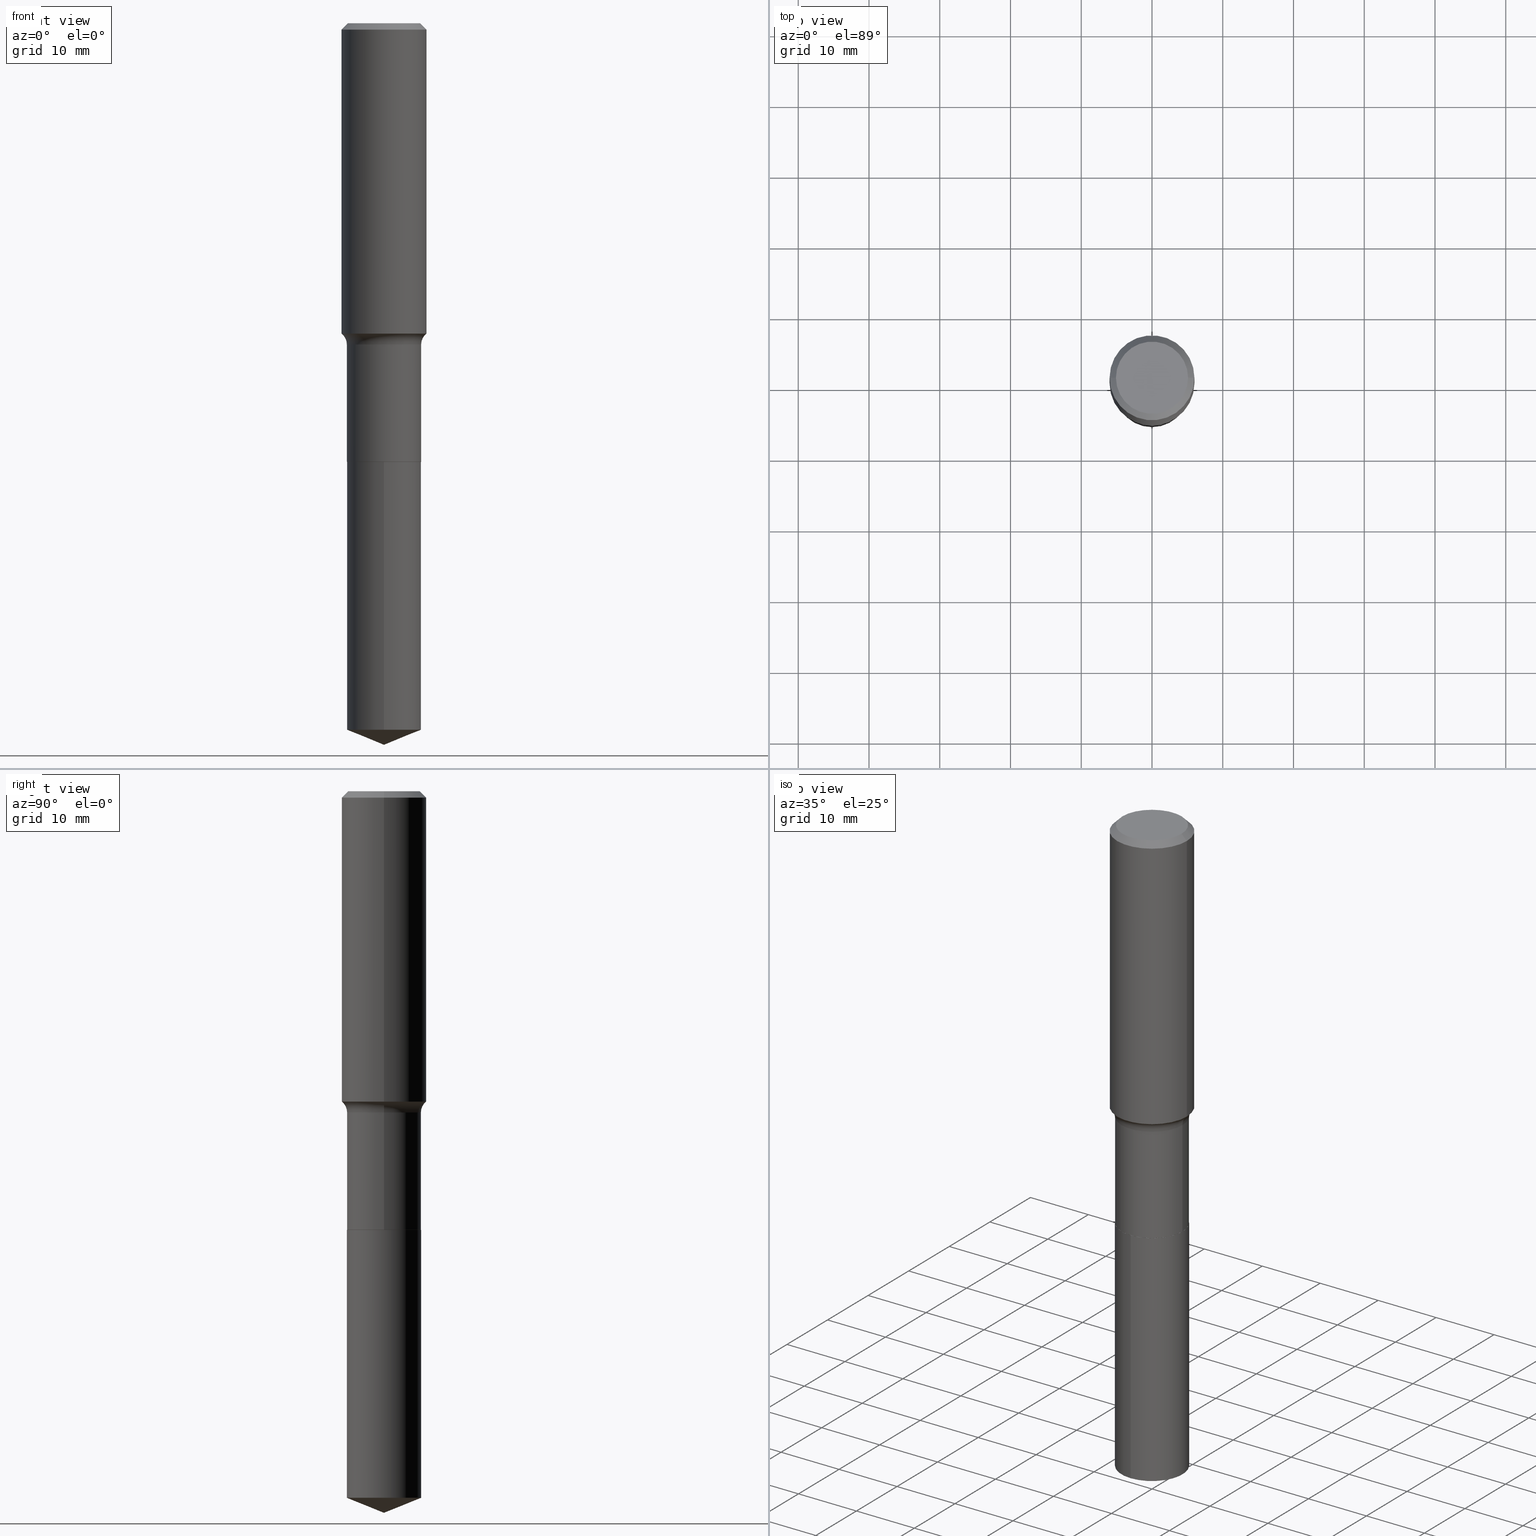
[diagram: canonical four-view strip — front | top / right | iso, engineering-drawing reading convention]
A machine part, canonical four-view strip (front | top / right | iso — engineering-drawing reading convention). The complete STEP part file that produces these views, byte-faithful:
ISO-10303-21;
HEADER;
FILE_DESCRIPTION (( 'STEP AP203' ),
    '1' );
FILE_NAME ('69195.STEP',
    '2024-04-19T17:21:42',
    ( '' ),
    ( '' ),
    'SwSTEP 2.0',
    'SolidWorks 2023',
    '' );
FILE_SCHEMA (( 'CONFIG_CONTROL_DESIGN' ));
ENDSEC;

DATA;
#1 = COORDINATED_UNIVERSAL_TIME_OFFSET ( 5, 0, .BEHIND. ) ;
#2 = CONICAL_SURFACE ( 'NONE', #419, 97.44436430772833546, 1.186823891356144633 ) ;
#3 = ORIENTED_EDGE ( 'NONE', *, *, #363, .F. ) ;
#4 = DIRECTION ( 'NONE',  ( 1.000000000000000000, -6.982962677686266711E-15, 0.000000000000000000 ) ) ;
#5 = EDGE_LOOP ( 'NONE', ( #273, #109 ) ) ;
#6 = DIRECTION ( 'NONE',  ( -2.445468806185136597E-29, 3.491481338843145583E-15, 1.000000000000000000 ) ) ;
#7 = EDGE_CURVE ( 'NONE', #198, #469, #202, .T. ) ;
#8 = LOCAL_TIME ( 13, 21, 42.00000000000000000, #1 ) ;
#9 = MECHANICAL_CONTEXT ( 'NONE', #491, 'mechanical' ) ;
#10 = DIRECTION ( 'NONE',  ( -2.445425754346182208E-29, 3.491542991526886614E-15, 1.000000000000000000 ) ) ;
#11 = ORIENTED_EDGE ( 'NONE', *, *, #100, .T. ) ;
#12 = EDGE_CURVE ( 'NONE', #435, #448, #154, .T. ) ;
#13 = DIRECTION ( 'NONE',  ( -2.445468806185136877E-29, 3.491481338843145188E-15, 1.000000000000000000 ) ) ;
#14 = ADVANCED_BREP_SHAPE_REPRESENTATION ( '69195', ( #215, #46, #451 ), #331 ) ;
#15 = AXIS2_PLACEMENT_3D ( 'NONE', #486, #190, #152 ) ;
#16 = AXIS2_PLACEMENT_3D ( 'NONE', #92, #436, #256 ) ;
#17 = ORIENTED_EDGE ( 'NONE', *, *, #325, .F. ) ;
#18 = DIRECTION ( 'NONE',  ( -2.445468806185136597E-29, 3.491481338843145583E-15, 1.000000000000000000 ) ) ;
#19 = PERSON_AND_ORGANIZATION ( #35, #400 ) ;
#20 = DIRECTION ( 'NONE',  ( 1.000000000000000000, -6.982962677686266711E-15, 0.000000000000000000 ) ) ;
#21 = EDGE_CURVE ( 'NONE', #488, #43, #321, .T. ) ;
#22 = COORDINATED_UNIVERSAL_TIME_OFFSET ( 5, 0, .BEHIND. ) ;
#23 = DIRECTION ( 'NONE',  ( -0.7071067811866199593, 7.493145998870616062E-15, 0.7071067811864750752 ) ) ;
#24 = EDGE_CURVE ( 'NONE', #361, #131, #450, .T. ) ;
#25 = VECTOR ( 'NONE', #457, 39.37007874015748143 ) ;
#26 = ORIENTED_EDGE ( 'NONE', *, *, #267, .F. ) ;
#27 = CARTESIAN_POINT ( 'NONE',  ( 0.2362000000000001043, -1.649375784469496920E-15, 1.151752954443000508E-29 ) ) ;
#28 = CARTESIAN_POINT ( 'NONE',  ( 5.967922074614207358E-29, -8.520611059312812251E-15, -2.440399999999999903 ) ) ;
#29 = DIRECTION ( 'NONE',  ( 0.7071067811866199593, -2.468850131083015945E-15, 0.7071067811864750752 ) ) ;
#30 = EDGE_CURVE ( 'NONE', #435, #137, #458, .T. ) ;
#31 = AXIS2_PLACEMENT_3D ( 'NONE', #134, #102, #142 ) ;
#32 = DIRECTION ( 'NONE',  ( -1.000000000000000000, 6.982962677686266711E-15, 0.000000000000000000 ) ) ;
#33 = VECTOR ( 'NONE', #410, 39.37007874015748143 ) ;
#34 = EDGE_CURVE ( 'NONE', #131, #464, #442, .T. ) ;
#35 = PERSON ( 'UNSPECIFIED', 'UNSPECIFIED', 'UNSPECIFIED', ('UNSPECIFIED'), ('UNSPECIFIED'), ('UNSPECIFIED') ) ;
#36 = CARTESIAN_POINT ( 'NONE',  ( -0.2361999999999999933, -1.398813793774924506E-15, -0.03543000000000021826 ) ) ;
#37 = EDGE_LOOP ( 'NONE', ( #223, #212, #327, #206 ) ) ;
#38 = LENGTH_MEASURE_WITH_UNIT ( LENGTH_MEASURE( 0.02539999999999999897 ), #303 );
#39 = DIRECTION ( 'NONE',  ( -0.7071067811865453523, 2.468850131082234184E-15, -0.7071067811865496822 ) ) ;
#40 = CC_DESIGN_APPROVAL ( #63, ( #347 ) ) ;
#41 = DATE_AND_TIME ( #456, #8 ) ;
#42 = CARTESIAN_POINT ( 'NONE',  ( 5.969144809017299038E-29, -8.522356799982232966E-15, -2.440900000000000070 ) ) ;
#43 = VERTEX_POINT ( 'NONE', #365 ) ;
#44 = EDGE_CURVE ( 'NONE', #448, #414, #481, .T. ) ;
#45 = VECTOR ( 'NONE', #13, 39.37007874015748143 ) ;
#46 = MANIFOLD_SOLID_BREP ( 'Body-Move/Copy2[2]', #472 ) ;
#47 = EDGE_LOOP ( 'NONE', ( #373, #241, #218, #408 ) ) ;
#48 = ORIENTED_EDGE ( 'NONE', *, *, #462, .F. ) ;
#49 = CARTESIAN_POINT ( 'NONE',  ( 9.820308215142285184E-29, -1.402068821500303058E-14, -4.015699999999999825 ) ) ;
#50 = EDGE_CURVE ( 'NONE', #227, #414, #98, .T. ) ;
#51 = FACE_OUTER_BOUND ( 'NONE', #417, .T. ) ;
#52 = AXIS2_PLACEMENT_3D ( 'NONE', #159, #431, #250 ) ;
#53 = CONICAL_SURFACE ( 'NONE', #136, 0.2062000000000000222, 0.7853981633975507526 ) ;
#54 = ORIENTED_EDGE ( 'NONE', *, *, #106, .F. ) ;
#55 = PLANE ( 'NONE',  #16 ) ;
#56 = DIRECTION ( 'NONE',  ( -6.982962677686265133E-15, -1.000000000000000000, 3.964946289788480107E-15 ) ) ;
#57 = EDGE_CURVE ( 'NONE', #227, #361, #406, .T. ) ;
#58 = DIRECTION ( 'NONE',  ( -1.000000000000000000, 7.105427357601001859E-15, 0.000000000000000000 ) ) ;
#59 = AXIS2_PLACEMENT_3D ( 'NONE', #199, #397, #56 ) ;
#60 = CARTESIAN_POINT ( 'NONE',  ( 0.000000000000000000, 0.000000000000000000, 0.000000000000000000 ) ) ;
#61 = VERTEX_POINT ( 'NONE', #305 ) ;
#62 = FACE_OUTER_BOUND ( 'NONE', #173, .T. ) ;
#63 = APPROVAL ( #200, 'UNSPECIFIED' ) ;
#64 = FACE_OUTER_BOUND ( 'NONE', #270, .T. ) ;
#65 = CONICAL_SURFACE ( 'NONE', #390, 0.2062000000000000222, 0.7853981633975507526 ) ;
#66 = DIRECTION ( 'NONE',  ( -2.445425754346182208E-29, 3.491542991526886220E-15, 1.000000000000000000 ) ) ;
#67 = ORIENTED_EDGE ( 'NONE', *, *, #50, .F. ) ;
#68 = PRODUCT_DEFINITION_FORMATION_WITH_SPECIFIED_SOURCE ( 'ANY', '', #209, .NOT_KNOWN. ) ;
#69 = EDGE_CURVE ( 'NONE', #61, #187, #73, .T. ) ;
#70 = DIRECTION ( 'NONE',  ( -2.445468806185136597E-29, 3.491481338843145583E-15, 1.000000000000000000 ) ) ;
#71 = CARTESIAN_POINT ( 'NONE',  ( 4.373231866100880373E-29, -6.243816078253197366E-15, -1.788300000000000223 ) ) ;
#72 = PERSON_AND_ORGANIZATION ( #35, #400 ) ;
#73 = LINE ( 'NONE', #233, #25 ) ;
#74 = ORIENTED_EDGE ( 'NONE', *, *, #30, .T. ) ;
#75 = AXIS2_PLACEMENT_3D ( 'NONE', #126, #404, #351 ) ;
#76 = TOROIDAL_SURFACE ( 'NONE', #260, 0.2846999999999998976, 0.07799999999999993050 ) ;
#77 =( NAMED_UNIT ( * ) PLANE_ANGLE_UNIT ( ) SI_UNIT ( $, .RADIAN. ) );
#78 = DIRECTION ( 'NONE',  ( 0.7071067811865453523, -7.319954787623248157E-15, -0.7071067811865496822 ) ) ;
#79 = PERSON_AND_ORGANIZATION ( #35, #400 ) ;
#80 = EDGE_CURVE ( 'NONE', #488, #464, #388, .T. ) ;
#81 = APPLICATION_CONTEXT ( 'configuration controlled 3d designs of mechanical parts and assemblies' ) ;
#82 = CARTESIAN_POINT ( 'NONE',  ( -0.2062000000000000222, -7.057217678844906817E-15, -2.440900000000000070 ) ) ;
#83 = ORIENTED_EDGE ( 'NONE', *, *, #208, .F. ) ;
#84 = LINE ( 'NONE', #82, #231 ) ;
#85 = EDGE_LOOP ( 'NONE', ( #254, #444 ) ) ;
#86 = CARTESIAN_POINT ( 'NONE',  ( -8.645640321485652588E-28, 1.234414837980197635E-13, 35.35437874015748605 ) ) ;
#87 = AXIS2_PLACEMENT_3D ( 'NONE', #306, #377, #487 ) ;
#88 = APPROVAL ( #188, 'UNSPECIFIED' ) ;
#89 = ORIENTED_EDGE ( 'NONE', *, *, #24, .T. ) ;
#90 = DIRECTION ( 'NONE',  ( 6.588037525764790502E-15, 0.9271838545667887566, 0.3746065934159082955 ) ) ;
#91 = ORIENTED_EDGE ( 'NONE', *, *, #106, .T. ) ;
#92 = CARTESIAN_POINT ( 'NONE',  ( -5.008488096090115757E-47, 7.150793614331959538E-33, 2.048068690724057264E-18 ) ) ;
#93 = ORIENTED_EDGE ( 'NONE', *, *, #393, .T. ) ;
#94 = DIRECTION ( 'NONE',  ( -2.445468806185136597E-29, 3.491481338843145583E-15, 1.000000000000000000 ) ) ;
#95 = ADVANCED_FACE ( 'NONE', ( #274 ), #156, .F. ) ;
#96 = CYLINDRICAL_SURFACE ( 'NONE', #147, 0.2362000000000001043 ) ;
#97 = DIRECTION ( 'NONE',  ( -2.445468806185136597E-29, 3.491481338843145583E-15, 1.000000000000000000 ) ) ;
#98 = LINE ( 'NONE', #452, #483 ) ;
#99 = ORIENTED_EDGE ( 'NONE', *, *, #44, .F. ) ;
#100 = EDGE_CURVE ( 'NONE', #43, #131, #191, .T. ) ;
#101 = ORIENTED_EDGE ( 'NONE', *, *, #197, .F. ) ;
#102 = DIRECTION ( 'NONE',  ( -2.445425754346182208E-29, 3.491542991526886614E-15, 1.000000000000000000 ) ) ;
#103 = CARTESIAN_POINT ( 'NONE',  ( -0.2361999999999999933, 1.525672600634282748E-15, -0.03543000000000021826 ) ) ;
#104 = CONICAL_SURFACE ( 'NONE', #399, 97.44436430772833546, 1.186823891356144633 ) ;
#105 = CARTESIAN_POINT ( 'NONE',  ( 0.2062000000000000222, -9.962243704121142752E-15, -2.440900000000000070 ) ) ;
#106 = EDGE_CURVE ( 'NONE', #61, #312, #284, .T. ) ;
#107 = PERSON_AND_ORGANIZATION ( #35, #400 ) ;
#108 = DIRECTION ( 'NONE',  ( -2.445468806185136877E-29, 3.491481338843145188E-15, 1.000000000000000000 ) ) ;
#109 = ORIENTED_EDGE ( 'NONE', *, *, #477, .F. ) ;
#110 = COORDINATED_UNIVERSAL_TIME_OFFSET ( 5, 0, .BEHIND. ) ;
#111 = ORIENTED_EDGE ( 'NONE', *, *, #439, .T. ) ;
#112 = AXIS2_PLACEMENT_3D ( 'NONE', #165, #316, #58 ) ;
#113 = ADVANCED_FACE ( 'NONE', ( #438 ), #395, .T. ) ;
#114 = DIRECTION ( 'NONE',  ( 1.000000000000000000, -6.982962677686268288E-15, 0.000000000000000000 ) ) ;
#115 =( NAMED_UNIT ( * ) SI_UNIT ( $, .STERADIAN. ) SOLID_ANGLE_UNIT ( ) );
#116 = DIRECTION ( 'NONE',  ( -6.982962677686265133E-15, -1.000000000000000000, 3.498761904101830713E-15 ) ) ;
#117 = VECTOR ( 'NONE', #139, 39.37007874015748143 ) ;
#118 = CIRCLE ( 'NONE', #288, 0.2067000000000000226 ) ;
#119 = CARTESIAN_POINT ( 'NONE',  ( 0.2066999999999999393, -7.687194463730947793E-15, -1.788300000000000223 ) ) ;
#120 = DIRECTION ( 'NONE',  ( 1.000000000000000000, -6.982962677686266711E-15, 4.876140833081945105E-29 ) ) ;
#121 = VERTEX_POINT ( 'NONE', #465 ) ;
#122 = DIRECTION ( 'NONE',  ( -2.445468806185136597E-29, 3.491481338843145583E-15, 1.000000000000000000 ) ) ;
#123 = PRODUCT_DEFINITION ( 'UNKNOWN', '', #68, #133 ) ;
#124 = PRODUCT_DEFINITION_SHAPE ( 'NONE', 'NONE',  #123 ) ;
#125 = ORIENTED_EDGE ( 'NONE', *, *, #100, .F. ) ;
#126 = CARTESIAN_POINT ( 'NONE',  ( 8.664295980313993487E-31, -1.237031838352134079E-16, -0.03543000000000021826 ) ) ;
#127 = UNCERTAINTY_MEASURE_WITH_UNIT (LENGTH_MEASURE( 1.000000000000000082E-05 ), #276, 'distance_accuracy_value', 'NONE');
#128 = AXIS2_PLACEMENT_3D ( 'NONE', #60, #217, #292 ) ;
#129 = APPROVAL_DATE_TIME ( #280, #63 ) ;
#130 = CARTESIAN_POINT ( 'NONE',  ( 0.000000000000000000, 0.000000000000000000, 0.000000000000000000 ) ) ;
#131 = VERTEX_POINT ( 'NONE', #119 ) ;
#132 = LINE ( 'NONE', #265, #356 ) ;
#133 = DESIGN_CONTEXT ( 'detailed design', #81, 'design' ) ;
#134 = CARTESIAN_POINT ( 'NONE',  ( 9.615978351218758648E-29, -1.372925219351792283E-14, -3.932187779119873383 ) ) ;
#135 = CC_DESIGN_DATE_AND_TIME_ASSIGNMENT ( #350, #426, ( #347 ) ) ;
#136 = AXIS2_PLACEMENT_3D ( 'NONE', #299, #412, #176 ) ;
#137 = VERTEX_POINT ( 'NONE', #428 ) ;
#138 = FACE_OUTER_BOUND ( 'NONE', #437, .T. ) ;
#139 = DIRECTION ( 'NONE',  ( -2.445468806185136877E-29, 3.491481338843145188E-15, 1.000000000000000000 ) ) ;
#140 = ADVANCED_FACE ( 'NONE', ( #51 ), #403, .T. ) ;
#141 = ORIENTED_EDGE ( 'NONE', *, *, #12, .F. ) ;
#142 = DIRECTION ( 'NONE',  ( -6.982962677686265133E-15, -1.000000000000000000, 2.643297526525653668E-15 ) ) ;
#143 = EDGE_CURVE ( 'NONE', #361, #227, #413, .T. ) ;
#144 = DIRECTION ( 'NONE',  ( -2.445425754346182208E-29, 3.491542991526886614E-15, 1.000000000000000000 ) ) ;
#145 = VECTOR ( 'NONE', #29, 39.37007874015748143 ) ;
#146 = PERSON_AND_ORGANIZATION ( #35, #400 ) ;
#147 = AXIS2_PLACEMENT_3D ( 'NONE', #407, #94, #324 ) ;
#148 = APPLICATION_PROTOCOL_DEFINITION ( 'international standard', 'config_control_design', 1994, #81 ) ;
#149 = EDGE_CURVE ( 'NONE', #226, #488, #84, .T. ) ;
#150 = EDGE_LOOP ( 'NONE', ( #101, #213, #89, #326 ) ) ;
#151 = CARTESIAN_POINT ( 'NONE',  ( -0.2067000000000000226, -5.913521733966878155E-15, -2.440399999999999903 ) ) ;
#152 = DIRECTION ( 'NONE',  ( 1.000000000000000000, -6.982962677686265922E-15, 4.876176775795935793E-29 ) ) ;
#153 = DIRECTION ( 'NONE',  ( 1.000000000000000000, -6.982962677686268288E-15, 0.000000000000000000 ) ) ;
#154 = CIRCLE ( 'NONE', #263, 0.2007700000000000040 ) ;
#155 = APPROVAL_PERSON_ORGANIZATION ( #463, #329, #341 ) ;
#156 = PLANE ( 'NONE',  #15 ) ;
#157 = CC_DESIGN_PERSON_AND_ORGANIZATION_ASSIGNMENT ( #285, #433, ( #68 ) ) ;
#158 = DIRECTION ( 'NONE',  ( 1.000000000000000000, -6.982962677686266711E-15, 4.876140833081945105E-29 ) ) ;
#159 = CARTESIAN_POINT ( 'NONE',  ( 4.373231866100880373E-29, -6.243816078253197366E-15, -1.788300000000000223 ) ) ;
#160 = CYLINDRICAL_SURFACE ( 'NONE', #195, 0.2066999999999999671 ) ;
#161 = VECTOR ( 'NONE', #78, 39.37007874015748143 ) ;
#162 = AXIS2_PLACEMENT_3D ( 'NONE', #389, #6, #153 ) ;
#163 = APPROVAL_ROLE ( '' ) ;
#164 = ORIENTED_EDGE ( 'NONE', *, *, #149, .T. ) ;
#165 = CARTESIAN_POINT ( 'NONE',  ( -0.2846999999999998976, -4.220900909544193259E-15, -1.788300000000000223 ) ) ;
#166 = DATE_AND_TIME ( #272, #443 ) ;
#167 = ORIENTED_EDGE ( 'NONE', *, *, #446, .T. ) ;
#168 = EDGE_LOOP ( 'NONE', ( #372, #171, #470, #125 ) ) ;
#169 = DIRECTION ( 'NONE',  ( 2.445425754346182208E-29, -3.491542991526886220E-15, -1.000000000000000000 ) ) ;
#170 = SECURITY_CLASSIFICATION_LEVEL ( 'unclassified' ) ;
#171 = ORIENTED_EDGE ( 'NONE', *, *, #80, .T. ) ;
#172 = DIRECTION ( 'NONE',  ( 6.982962677686265922E-15, 1.000000000000000000, -3.491542991526886220E-15 ) ) ;
#173 = EDGE_LOOP ( 'NONE', ( #315, #91, #17 ) ) ;
#174 = FACE_OUTER_BOUND ( 'NONE', #150, .T. ) ;
#175 = CARTESIAN_POINT ( 'NONE',  ( -8.645640321485652588E-28, 1.234414837980197635E-13, 35.35437874015748605 ) ) ;
#176 = DIRECTION ( 'NONE',  ( 1.000000000000000000, -6.982962677686268288E-15, 0.000000000000000000 ) ) ;
#177 = ADVANCED_FACE ( 'NONE', ( #320 ), #104, .T. ) ;
#178 = TOROIDAL_SURFACE ( 'NONE', #259, 0.2846999999999998976, 0.07799999999999993050 ) ;
#179 = APPROVAL_PERSON_ORGANIZATION ( #146, #88, #301 ) ;
#180 = CARTESIAN_POINT ( 'NONE',  ( 0.2007700000000000040, -1.560767496960719672E-15, 4.096137381458473721E-18 ) ) ;
#181 = ADVANCED_FACE ( 'NONE', ( #318 ), #242, .F. ) ;
#182 = FACE_OUTER_BOUND ( 'NONE', #467, .T. ) ;
#183 = DIRECTION ( 'NONE',  ( 1.000000000000000000, -6.982962677686264344E-15, 0.000000000000000000 ) ) ;
#184 = CIRCLE ( 'NONE', #466, 0.2007700000000000040 ) ;
#185 = CARTESIAN_POINT ( 'NONE',  ( -0.2007700000000000040, 1.463821008716677338E-15, 4.096137381438094301E-18 ) ) ;
#186 = AXIS2_PLACEMENT_3D ( 'NONE', #445, #492, #484 ) ;
#187 = VERTEX_POINT ( 'NONE', #279 ) ;
#188 = APPROVAL_STATUS ( 'not_yet_approved' ) ;
#189 = EDGE_CURVE ( 'NONE', #448, #435, #184, .T. ) ;
#190 = DIRECTION ( 'NONE',  ( -2.438088387897960049E-29, 3.491481338843145188E-15, 1.000000000000000000 ) ) ;
#191 = LINE ( 'NONE', #479, #45 ) ;
#192 = DIRECTION ( 'NONE',  ( -2.445468806185136597E-29, 3.491481338843145583E-15, 1.000000000000000000 ) ) ;
#193 = ADVANCED_FACE ( 'NONE', ( #358 ), #160, .T. ) ;
#194 = APPLICATION_PROTOCOL_DEFINITION ( 'international standard', 'config_control_design', 1994, #491 ) ;
#195 = AXIS2_PLACEMENT_3D ( 'NONE', #130, #18, #313 ) ;
#196 = LOCAL_TIME ( 13, 21, 42.00000000000000000, #319 ) ;
#197 = EDGE_CURVE ( 'NONE', #227, #464, #251, .T. ) ;
#198 = VERTEX_POINT ( 'NONE', #427 ) ;
#199 = CARTESIAN_POINT ( 'NONE',  ( 5.969144809017299038E-29, -8.522356799982232966E-15, -2.440900000000000070 ) ) ;
#200 = APPROVAL_STATUS ( 'not_yet_approved' ) ;
#201 = ADVANCED_FACE ( 'NONE', ( #468 ), #178, .F. ) ;
#202 = CIRCLE ( 'NONE', #375, 0.2067000000000000226 ) ;
#203 = CARTESIAN_POINT ( 'NONE',  ( -1.001697619218023151E-46, 1.430158722866391908E-32, 4.096137381448114529E-18 ) ) ;
#204 = CIRCLE ( 'NONE', #300, 0.2067000000000000226 ) ;
#205 = CONICAL_SURFACE ( 'NONE', #224, 0.2361999999999999933, 0.7853981633974452814 ) ;
#206 = ORIENTED_EDGE ( 'NONE', *, *, #393, .F. ) ;
#207 = FACE_OUTER_BOUND ( 'NONE', #47, .T. ) ;
#208 = EDGE_CURVE ( 'NONE', #414, #137, #222, .T. ) ;
#209 = PRODUCT ( '69195', '69195', '', ( #9 ) ) ;
#210 = CARTESIAN_POINT ( 'NONE',  ( -0.2066999999999999671, 1.468691834816126850E-15, -1.016743883155689005E-29 ) ) ;
#211 = PERSON_AND_ORGANIZATION_ROLE ( 'design_supplier' ) ;
#212 = ORIENTED_EDGE ( 'NONE', *, *, #295, .T. ) ;
#213 = ORIENTED_EDGE ( 'NONE', *, *, #143, .F. ) ;
#214 = CARTESIAN_POINT ( 'NONE',  ( 4.223842942448906576E-29, -6.030528287445351375E-15, -1.727211948795202234 ) ) ;
#215 = MANIFOLD_SOLID_BREP ( 'Body-Move/Copy2[1]', #424 ) ;
#216 = DIRECTION ( 'NONE',  ( 1.000000000000000000, -6.982962677686269866E-15, 4.883557194083113462E-29 ) ) ;
#217 = DIRECTION ( 'NONE',  ( -2.445468806185136597E-29, 3.491481338843145583E-15, 1.000000000000000000 ) ) ;
#218 = ORIENTED_EDGE ( 'NONE', *, *, #44, .T. ) ;
#219 = FACE_OUTER_BOUND ( 'NONE', #353, .T. ) ;
#220 = ORIENTED_EDGE ( 'NONE', *, *, #477, .T. ) ;
#221 = DIRECTION ( 'NONE',  ( 1.000000000000000000, -6.982962677686269866E-15, 0.000000000000000000 ) ) ;
#222 = CIRCLE ( 'NONE', #459, 0.2361999999999999933 ) ;
#223 = ORIENTED_EDGE ( 'NONE', *, *, #385, .F. ) ;
#224 = AXIS2_PLACEMENT_3D ( 'NONE', #323, #374, #32 ) ;
#225 = DIRECTION ( 'NONE',  ( -2.445425754346182208E-29, 3.491542991526886220E-15, 1.000000000000000000 ) ) ;
#226 = VERTEX_POINT ( 'NONE', #286 ) ;
#227 = VERTEX_POINT ( 'NONE', #249 ) ;
#228 = DATE_AND_TIME ( #269, #252 ) ;
#229 = ORIENTED_EDGE ( 'NONE', *, *, #69, .T. ) ;
#230 = ADVANCED_FACE ( 'NONE', ( #401 ), #55, .F. ) ;
#231 = VECTOR ( 'NONE', #23, 39.37007874015748143 ) ;
#232 = PERSON_AND_ORGANIZATION_ROLE ( 'creator' ) ;
#233 = CARTESIAN_POINT ( 'NONE',  ( 9.820096201727964997E-29, -1.402098919107452008E-14, -4.015699999999999825 ) ) ;
#234 = AXIS2_PLACEMENT_3D ( 'NONE', #344, #340, #386 ) ;
#235 = ORIENTED_EDGE ( 'NONE', *, *, #446, .F. ) ;
#236 = DIRECTION ( 'NONE',  ( 0.000000000000000000, 0.000000000000000000, 1.000000000000000000 ) ) ;
#237 = ADVANCED_FACE ( 'NONE', ( #207 ), #294, .T. ) ;
#238 = VECTOR ( 'NONE', #39, 39.37007874015748143 ) ;
#239 = SHAPE_DEFINITION_REPRESENTATION ( #124, #14 ) ;
#240 = DIRECTION ( 'NONE',  ( -2.445468806185136597E-29, 3.491481338843145583E-15, 1.000000000000000000 ) ) ;
#241 = ORIENTED_EDGE ( 'NONE', *, *, #189, .F. ) ;
#242 = PLANE ( 'NONE',  #434 ) ;
#243 = ADVANCED_FACE ( 'NONE', ( #138 ), #449, .T. ) ;
#244 = PERSON_AND_ORGANIZATION_ROLE ( 'classification_officer' ) ;
#245 = CARTESIAN_POINT ( 'NONE',  ( 0.000000000000000000, 0.000000000000000000, 0.000000000000000000 ) ) ;
#246 = CC_DESIGN_PERSON_AND_ORGANIZATION_ASSIGNMENT ( #398, #244, ( #347 ) ) ;
#247 = CARTESIAN_POINT ( 'NONE',  ( 5.967922074614207358E-29, -8.520611059312812251E-15, -2.440399999999999903 ) ) ;
#248 = EDGE_LOOP ( 'NONE', ( #54, #229, #283 ) ) ;
#249 = CARTESIAN_POINT ( 'NONE',  ( -0.2362000000000002153, -4.352226345579992615E-15, -1.727211948795202234 ) ) ;
#250 = DIRECTION ( 'NONE',  ( 1.000000000000000000, -6.982962677686264344E-15, 0.000000000000000000 ) ) ;
#251 = CIRCLE ( 'NONE', #112, 0.07799999999999988887 ) ;
#252 = LOCAL_TIME ( 13, 21, 42.00000000000000000, #277 ) ;
#253 = ORIENTED_EDGE ( 'NONE', *, *, #462, .T. ) ;
#254 = ORIENTED_EDGE ( 'NONE', *, *, #189, .T. ) ;
#255 = DIRECTION ( 'NONE',  ( -2.445468806185136597E-29, 3.491481338843145583E-15, 1.000000000000000000 ) ) ;
#256 = DIRECTION ( 'NONE',  ( -1.000000000000000000, 6.982962677686265922E-15, -4.876176775795935793E-29 ) ) ;
#257 = CC_DESIGN_DATE_AND_TIME_ASSIGNMENT ( #41, #416, ( #123 ) ) ;
#258 = DIRECTION ( 'NONE',  ( -2.445468806185136597E-29, 3.491481338843145583E-15, 1.000000000000000000 ) ) ;
#259 = AXIS2_PLACEMENT_3D ( 'NONE', #290, #122, #311 ) ;
#260 = AXIS2_PLACEMENT_3D ( 'NONE', #370, #258, #216 ) ;
#261 = DIRECTION ( 'NONE',  ( -6.982962677686265133E-15, -1.000000000000000000, 3.964946289788480107E-15 ) ) ;
#262 = DIRECTION ( 'NONE',  ( 1.000000000000000000, -6.982962677686268288E-15, 0.000000000000000000 ) ) ;
#263 = AXIS2_PLACEMENT_3D ( 'NONE', #335, #240, #120 ) ;
#264 = APPROVAL_PERSON_ORGANIZATION ( #19, #63, #163 ) ;
#265 = CARTESIAN_POINT ( 'NONE',  ( -1.443378385477691656E-15, -0.2067000000000085436, -2.440899999999999181 ) ) ;
#266 = ORIENTED_EDGE ( 'NONE', *, *, #267, .T. ) ;
#267 = EDGE_CURVE ( 'NONE', #121, #43, #489, .T. ) ;
#268 = CARTESIAN_POINT ( 'NONE',  ( 5.969144809017299038E-29, -8.522356799982232966E-15, -2.440900000000000070 ) ) ;
#269 = CALENDAR_DATE ( 2024, 19, 4 ) ;
#270 = EDGE_LOOP ( 'NONE', ( #141, #74, #253, #99 ) ) ;
#271 = CIRCLE ( 'NONE', #322, 0.2062000000000000222 ) ;
#272 = CALENDAR_DATE ( 2024, 19, 4 ) ;
#273 = ORIENTED_EDGE ( 'NONE', *, *, #439, .F. ) ;
#274 = FACE_OUTER_BOUND ( 'NONE', #5, .T. ) ;
#275 = ADVANCED_FACE ( 'NONE', ( #62 ), #2, .T. ) ;
#276 =( CONVERSION_BASED_UNIT ( 'INCH', #38 ) LENGTH_UNIT ( ) NAMED_UNIT ( #396 ) );
#277 = COORDINATED_UNIVERSAL_TIME_OFFSET ( 5, 0, .BEHIND. ) ;
#278 = CALENDAR_DATE ( 2024, 19, 4 ) ;
#279 = CARTESIAN_POINT ( 'NONE',  ( -1.443378385477655369E-15, -0.2067000000000137339, -3.932187779119872495 ) ) ;
#280 = DATE_AND_TIME ( #352, #308 ) ;
#281 = EDGE_LOOP ( 'NONE', ( #421, #317, #11, #235 ) ) ;
#282 = DIRECTION ( 'NONE',  ( 1.000000000000000000, -6.982962677686266711E-15, 0.000000000000000000 ) ) ;
#283 = ORIENTED_EDGE ( 'NONE', *, *, #295, .F. ) ;
#284 = LINE ( 'NONE', #49, #368 ) ;
#285 = PERSON_AND_ORGANIZATION ( #35, #400 ) ;
#286 = CARTESIAN_POINT ( 'NONE',  ( -0.2062000000000000222, -7.054568451670796404E-15, -2.440900000000000070 ) ) ;
#287 = AXIS2_PLACEMENT_3D ( 'NONE', #378, #447, #261 ) ;
#288 = AXIS2_PLACEMENT_3D ( 'NONE', #28, #97, #221 ) ;
#289 = ORIENTED_EDGE ( 'NONE', *, *, #7, .T. ) ;
#290 = CARTESIAN_POINT ( 'NONE',  ( 4.373231866100880373E-29, -6.243816078253197366E-15, -1.788300000000000223 ) ) ;
#291 = EDGE_LOOP ( 'NONE', ( #474, #357, #48, #453 ) ) ;
#292 = DIRECTION ( 'NONE',  ( 1.000000000000000000, -6.982962677686266711E-15, 4.876176775795935793E-29 ) ) ;
#293 = CARTESIAN_POINT ( 'NONE',  ( 9.615978351218758648E-29, -1.372925219351792283E-14, -3.932187779119873383 ) ) ;
#294 = CONICAL_SURFACE ( 'NONE', #75, 0.2361999999999999933, 0.7853981633974452814 ) ;
#295 = EDGE_CURVE ( 'NONE', #312, #187, #355, .T. ) ;
#296 = CC_DESIGN_SECURITY_CLASSIFICATION ( #347, ( #68 ) ) ;
#297 = CYLINDRICAL_SURFACE ( 'NONE', #287, 0.2067000000000000226 ) ;
#298 = FACE_OUTER_BOUND ( 'NONE', #37, .T. ) ;
#299 = CARTESIAN_POINT ( 'NONE',  ( 5.969144809017299038E-29, -8.522356799982232966E-15, -2.440900000000000070 ) ) ;
#300 = AXIS2_PLACEMENT_3D ( 'NONE', #293, #441, #480 ) ;
#301 = APPROVAL_ROLE ( '' ) ;
#302 = EDGE_LOOP ( 'NONE', ( #289, #93 ) ) ;
#303 =( LENGTH_UNIT ( ) NAMED_UNIT ( * ) SI_UNIT ( $, .METRE. ) );
#304 = APPROVAL_STATUS ( 'not_yet_approved' ) ;
#305 = CARTESIAN_POINT ( 'NONE',  ( 9.820096201727962755E-29, -1.402098919107451851E-14, -4.015699999999999825 ) ) ;
#306 = CARTESIAN_POINT ( 'NONE',  ( 0.2846999999999998976, -8.231865552590477417E-15, -1.788300000000000223 ) ) ;
#307 = AXIS2_PLACEMENT_3D ( 'NONE', #382, #482, #4 ) ;
#308 = LOCAL_TIME ( 13, 21, 42.00000000000000000, #22 ) ;
#309 = PERSON_AND_ORGANIZATION_ROLE ( 'design_owner' ) ;
#310 = ORIENTED_EDGE ( 'NONE', *, *, #325, .T. ) ;
#311 = DIRECTION ( 'NONE',  ( 1.000000000000000000, -6.982962677686269866E-15, 4.883557194083113462E-29 ) ) ;
#312 = VERTEX_POINT ( 'NONE', #440 ) ;
#313 = DIRECTION ( 'NONE',  ( 1.000000000000000000, -6.982962677686266711E-15, 4.876176775795935793E-29 ) ) ;
#314 = CIRCLE ( 'NONE', #339, 0.2066999999999999393 ) ;
#315 = ORIENTED_EDGE ( 'NONE', *, *, #69, .F. ) ;
#316 = DIRECTION ( 'NONE',  ( 7.105427357601001859E-15, 1.000000000000000000, -3.491481338843145583E-15 ) ) ;
#317 = ORIENTED_EDGE ( 'NONE', *, *, #21, .T. ) ;
#318 = FACE_OUTER_BOUND ( 'NONE', #302, .T. ) ;
#319 = COORDINATED_UNIVERSAL_TIME_OFFSET ( 5, 0, .BEHIND. ) ;
#320 = FACE_OUTER_BOUND ( 'NONE', #248, .T. ) ;
#321 = CIRCLE ( 'NONE', #383, 0.2067000000000000226 ) ;
#322 = AXIS2_PLACEMENT_3D ( 'NONE', #268, #192, #114 ) ;
#323 = CARTESIAN_POINT ( 'NONE',  ( 8.664295980313993487E-31, -1.237031838352134079E-16, -0.03543000000000021826 ) ) ;
#324 = DIRECTION ( 'NONE',  ( 1.000000000000000000, -6.982962677686266711E-15, 4.876176775795935793E-29 ) ) ;
#325 = EDGE_CURVE ( 'NONE', #187, #312, #204, .T. ) ;
#326 = ORIENTED_EDGE ( 'NONE', *, *, #34, .T. ) ;
#327 = ORIENTED_EDGE ( 'NONE', *, *, #363, .T. ) ;
#328 = FACE_OUTER_BOUND ( 'NONE', #291, .T. ) ;
#329 = APPROVAL ( #304, 'UNSPECIFIED' ) ;
#330 = AXIS2_PLACEMENT_3D ( 'NONE', #245, #255, #362 ) ;
#331 =( GEOMETRIC_REPRESENTATION_CONTEXT ( 3 ) GLOBAL_UNCERTAINTY_ASSIGNED_CONTEXT ( ( #127 ) ) GLOBAL_UNIT_ASSIGNED_CONTEXT ( ( #276, #77, #115 ) ) REPRESENTATION_CONTEXT ( 'NONE', 'WORKASPACE' ) );
#332 = EDGE_LOOP ( 'NONE', ( #392, #369, #167, #402 ) ) ;
#333 = DIRECTION ( 'NONE',  ( -2.445468806185136597E-29, 3.491481338843145583E-15, 1.000000000000000000 ) ) ;
#334 = CARTESIAN_POINT ( 'NONE',  ( 1.468691834816186607E-15, 0.2066999999999914739, -2.440900000000000514 ) ) ;
#335 = CARTESIAN_POINT ( 'NONE',  ( -1.001697619218023151E-46, 1.430158722866391908E-32, 4.096137381448114529E-18 ) ) ;
#336 = CC_DESIGN_PERSON_AND_ORGANIZATION_ASSIGNMENT ( #72, #232, ( #123 ) ) ;
#337 = APPROVAL_DATE_TIME ( #228, #329 ) ;
#338 = AXIS2_PLACEMENT_3D ( 'NONE', #214, #364, #282 ) ;
#339 = AXIS2_PLACEMENT_3D ( 'NONE', #71, #70, #183 ) ;
#340 = DIRECTION ( 'NONE',  ( -2.445468806185136597E-29, 3.491481338843145583E-15, 1.000000000000000000 ) ) ;
#341 = APPROVAL_ROLE ( '' ) ;
#342 = ADVANCED_FACE ( 'NONE', ( #298 ), #297, .T. ) ;
#343 = DIRECTION ( 'NONE',  ( 1.000000000000000000, -6.982962677686269866E-15, 0.000000000000000000 ) ) ;
#344 = CARTESIAN_POINT ( 'NONE',  ( 8.664295980313993487E-31, -1.237031838352134079E-16, -0.03543000000000021826 ) ) ;
#345 = ORIENTED_EDGE ( 'NONE', *, *, #149, .F. ) ;
#346 = ADVANCED_FACE ( 'NONE', ( #182 ), #65, .T. ) ;
#347 = SECURITY_CLASSIFICATION ( '', '', #170 ) ;
#348 = CARTESIAN_POINT ( 'NONE',  ( 0.000000000000000000, 0.000000000000000000, 0.000000000000000000 ) ) ;
#349 = ADVANCED_FACE ( 'NONE', ( #328 ), #96, .T. ) ;
#350 = DATE_AND_TIME ( #278, #196 ) ;
#351 = DIRECTION ( 'NONE',  ( -1.000000000000000000, 6.982962677686266711E-15, 0.000000000000000000 ) ) ;
#352 = CALENDAR_DATE ( 2024, 19, 4 ) ;
#353 = EDGE_LOOP ( 'NONE', ( #111, #164, #411, #26 ) ) ;
#354 = CARTESIAN_POINT ( 'NONE',  ( 5.969144809017299038E-29, -8.522356799982232966E-15, -2.440900000000000070 ) ) ;
#355 = CIRCLE ( 'NONE', #31, 0.2067000000000000226 ) ;
#356 = VECTOR ( 'NONE', #66, 39.37007874015748143 ) ;
#357 = ORIENTED_EDGE ( 'NONE', *, *, #50, .T. ) ;
#358 = FACE_OUTER_BOUND ( 'NONE', #168, .T. ) ;
#359 = ADVANCED_FACE ( 'NONE', ( #219 ), #53, .T. ) ;
#360 = APPROVAL_DATE_TIME ( #166, #88 ) ;
#361 = VERTEX_POINT ( 'NONE', #415 ) ;
#362 = DIRECTION ( 'NONE',  ( 1.000000000000000000, -6.982962677686266711E-15, 4.876176775795935793E-29 ) ) ;
#363 = EDGE_CURVE ( 'NONE', #187, #198, #132, .T. ) ;
#364 = DIRECTION ( 'NONE',  ( -2.445468806185136597E-29, 3.491481338843145583E-15, 1.000000000000000000 ) ) ;
#365 = CARTESIAN_POINT ( 'NONE',  ( 0.2067000000000000226, -9.963989444790565044E-15, -2.440399999999999903 ) ) ;
#366 = ORIENTED_EDGE ( 'NONE', *, *, #7, .F. ) ;
#367 = LINE ( 'NONE', #27, #33 ) ;
#368 = VECTOR ( 'NONE', #90, 39.37007874015748854 ) ;
#369 = ORIENTED_EDGE ( 'NONE', *, *, #197, .T. ) ;
#370 = CARTESIAN_POINT ( 'NONE',  ( 4.373231866100880373E-29, -6.243816078253197366E-15, -1.788300000000000223 ) ) ;
#371 = LINE ( 'NONE', #334, #460 ) ;
#372 = ORIENTED_EDGE ( 'NONE', *, *, #409, .T. ) ;
#373 = ORIENTED_EDGE ( 'NONE', *, *, #30, .F. ) ;
#374 = DIRECTION ( 'NONE',  ( 2.445468806185136597E-29, -3.491481338843145583E-15, -1.000000000000000000 ) ) ;
#375 = AXIS2_PLACEMENT_3D ( 'NONE', #42, #490, #379 ) ;
#376 = CIRCLE ( 'NONE', #234, 0.2361999999999999933 ) ;
#377 = DIRECTION ( 'NONE',  ( -6.982962677686266711E-15, -1.000000000000000000, 3.491481338843145583E-15 ) ) ;
#378 = CARTESIAN_POINT ( 'NONE',  ( 5.969144809017299038E-29, -8.522356799982232966E-15, -2.440900000000000070 ) ) ;
#379 = DIRECTION ( 'NONE',  ( -6.982962677686265133E-15, -1.000000000000000000, 3.964946289788480107E-15 ) ) ;
#380 = CC_DESIGN_PERSON_AND_ORGANIZATION_ASSIGNMENT ( #79, #211, ( #68 ) ) ;
#381 = CARTESIAN_POINT ( 'NONE',  ( -0.2066999999999999393, -5.913521733966878155E-15, -1.788300000000000223 ) ) ;
#382 = CARTESIAN_POINT ( 'NONE',  ( 4.223842942448906576E-29, -6.030528287445351375E-15, -1.727211948795202234 ) ) ;
#383 = AXIS2_PLACEMENT_3D ( 'NONE', #247, #476, #343 ) ;
#384 = ORIENTED_EDGE ( 'NONE', *, *, #385, .T. ) ;
#385 = EDGE_CURVE ( 'NONE', #312, #469, #371, .T. ) ;
#386 = DIRECTION ( 'NONE',  ( 1.000000000000000000, -6.982962677686266711E-15, 0.000000000000000000 ) ) ;
#387 = ORIENTED_EDGE ( 'NONE', *, *, #422, .T. ) ;
#388 = LINE ( 'NONE', #210, #117 ) ;
#389 = CARTESIAN_POINT ( 'NONE',  ( 5.969144809017299038E-29, -8.522356799982232966E-15, -2.440900000000000070 ) ) ;
#390 = AXIS2_PLACEMENT_3D ( 'NONE', #405, #333, #262 ) ;
#391 = CIRCLE ( 'NONE', #186, 0.2067000000000000226 ) ;
#392 = ORIENTED_EDGE ( 'NONE', *, *, #57, .F. ) ;
#393 = EDGE_CURVE ( 'NONE', #469, #198, #391, .T. ) ;
#394 = ORIENTED_EDGE ( 'NONE', *, *, #57, .T. ) ;
#395 = CYLINDRICAL_SURFACE ( 'NONE', #330, 0.2066999999999999671 ) ;
#396 = DIMENSIONAL_EXPONENTS ( 1.000000000000000000, 0.000000000000000000, 0.000000000000000000, 0.000000000000000000, 0.000000000000000000, 0.000000000000000000, 0.000000000000000000 ) ;
#397 = DIRECTION ( 'NONE',  ( -2.445425754346182208E-29, 3.491542991526886614E-15, 1.000000000000000000 ) ) ;
#398 = PERSON_AND_ORGANIZATION ( #35, #400 ) ;
#399 = AXIS2_PLACEMENT_3D ( 'NONE', #86, #10, #116 ) ;
#400 = ORGANIZATION ( 'UNSPECIFIED', 'UNSPECIFIED', '' ) ;
#401 = FACE_OUTER_BOUND ( 'NONE', #85, .T. ) ;
#402 = ORIENTED_EDGE ( 'NONE', *, *, #24, .F. ) ;
#403 = CYLINDRICAL_SURFACE ( 'NONE', #59, 0.2067000000000000226 ) ;
#404 = DIRECTION ( 'NONE',  ( 2.445468806185136597E-29, -3.491481338843145583E-15, -1.000000000000000000 ) ) ;
#405 = CARTESIAN_POINT ( 'NONE',  ( 5.969144809017299038E-29, -8.522356799982232966E-15, -2.440900000000000070 ) ) ;
#406 = CIRCLE ( 'NONE', #307, 0.2362000000000002153 ) ;
#407 = CARTESIAN_POINT ( 'NONE',  ( 0.000000000000000000, 0.000000000000000000, 0.000000000000000000 ) ) ;
#408 = ORIENTED_EDGE ( 'NONE', *, *, #208, .T. ) ;
#409 = EDGE_CURVE ( 'NONE', #43, #488, #118, .T. ) ;
#410 = DIRECTION ( 'NONE',  ( -2.445468806185136877E-29, 3.491481338843145188E-15, 1.000000000000000000 ) ) ;
#411 = ORIENTED_EDGE ( 'NONE', *, *, #409, .F. ) ;
#412 = DIRECTION ( 'NONE',  ( -2.445468806185136597E-29, 3.491481338843145583E-15, 1.000000000000000000 ) ) ;
#413 = CIRCLE ( 'NONE', #338, 0.2362000000000002153 ) ;
#414 = VERTEX_POINT ( 'NONE', #36 ) ;
#415 = CARTESIAN_POINT ( 'NONE',  ( 0.2362000000000002153, -7.679904071914847901E-15, -1.727211948795202234 ) ) ;
#416 = DATE_TIME_ROLE ( 'creation_date' ) ;
#417 = EDGE_LOOP ( 'NONE', ( #310, #384, #366, #3 ) ) ;
#418 = CARTESIAN_POINT ( 'NONE',  ( 1.468691834816223486E-15, 0.2066999999999915016, -2.440900000000000514 ) ) ;
#419 = AXIS2_PLACEMENT_3D ( 'NONE', #175, #144, #478 ) ;
#420 = ADVANCED_FACE ( 'NONE', ( #174 ), #76, .F. ) ;
#421 = ORIENTED_EDGE ( 'NONE', *, *, #80, .F. ) ;
#422 = EDGE_CURVE ( 'NONE', #361, #137, #367, .T. ) ;
#423 = ADVANCED_FACE ( 'NONE', ( #64 ), #205, .T. ) ;
#424 = CLOSED_SHELL ( 'NONE', ( #140, #275, #177, #342, #181 ) ) ;
#425 = CC_DESIGN_APPROVAL ( #329, ( #123 ) ) ;
#426 = DATE_TIME_ROLE ( 'classification_date' ) ;
#427 = CARTESIAN_POINT ( 'NONE',  ( -1.443378385477691656E-15, -0.2067000000000085436, -2.440899999999999181 ) ) ;
#428 = CARTESIAN_POINT ( 'NONE',  ( 0.2361999999999999933, -1.773078968304709514E-15, -0.03543000000000021826 ) ) ;
#429 = ORIENTED_EDGE ( 'NONE', *, *, #21, .F. ) ;
#430 = CARTESIAN_POINT ( 'NONE',  ( 8.664295980313993487E-31, -1.237031838352134079E-16, -0.03543000000000021826 ) ) ;
#431 = DIRECTION ( 'NONE',  ( -2.445468806185136597E-29, 3.491481338843145583E-15, 1.000000000000000000 ) ) ;
#432 = PRODUCT_RELATED_PRODUCT_CATEGORY ( 'detail', '', ( #209 ) ) ;
#433 = PERSON_AND_ORGANIZATION_ROLE ( 'creator' ) ;
#434 = AXIS2_PLACEMENT_3D ( 'NONE', #354, #169, #172 ) ;
#435 = VERTEX_POINT ( 'NONE', #180 ) ;
#436 = DIRECTION ( 'NONE',  ( 2.438088387897960049E-29, -3.491481338843145188E-15, -1.000000000000000000 ) ) ;
#437 = EDGE_LOOP ( 'NONE', ( #67, #394, #387, #83 ) ) ;
#438 = FACE_OUTER_BOUND ( 'NONE', #281, .T. ) ;
#439 = EDGE_CURVE ( 'NONE', #121, #226, #485, .T. ) ;
#440 = CARTESIAN_POINT ( 'NONE',  ( 1.468691834816223091E-15, 0.2066999999999862836, -3.932187779119873827 ) ) ;
#441 = DIRECTION ( 'NONE',  ( -2.445425754346182208E-29, 3.491542991526886614E-15, 1.000000000000000000 ) ) ;
#442 = CIRCLE ( 'NONE', #52, 0.2066999999999999393 ) ;
#443 = LOCAL_TIME ( 13, 21, 42.00000000000000000, #110 ) ;
#444 = ORIENTED_EDGE ( 'NONE', *, *, #12, .T. ) ;
#445 = CARTESIAN_POINT ( 'NONE',  ( 5.969144809017299038E-29, -8.522356799982232966E-15, -2.440900000000000070 ) ) ;
#446 = EDGE_CURVE ( 'NONE', #464, #131, #314, .T. ) ;
#447 = DIRECTION ( 'NONE',  ( -2.445425754346182208E-29, 3.491542991526886614E-15, 1.000000000000000000 ) ) ;
#448 = VERTEX_POINT ( 'NONE', #185 ) ;
#449 = CYLINDRICAL_SURFACE ( 'NONE', #128, 0.2362000000000001043 ) ;
#450 = CIRCLE ( 'NONE', #87, 0.07799999999999988887 ) ;
#451 = AXIS2_PLACEMENT_3D ( 'NONE', #348, #236, #454 ) ;
#452 = CARTESIAN_POINT ( 'NONE',  ( -0.2362000000000001043, 1.678301941865357380E-15, -1.161852468318209317E-29 ) ) ;
#453 = ORIENTED_EDGE ( 'NONE', *, *, #422, .F. ) ;
#454 = DIRECTION ( 'NONE',  ( 1.000000000000000000, 0.000000000000000000, 0.000000000000000000 ) ) ;
#455 = CC_DESIGN_PERSON_AND_ORGANIZATION_ASSIGNMENT ( #107, #309, ( #209 ) ) ;
#456 = CALENDAR_DATE ( 2024, 19, 4 ) ;
#457 = DIRECTION ( 'NONE',  ( -6.474490251793178629E-15, -0.9271838545667862030, 0.3746065934159147903 ) ) ;
#458 = LINE ( 'NONE', #461, #161 ) ;
#459 = AXIS2_PLACEMENT_3D ( 'NONE', #430, #471, #20 ) ;
#460 = VECTOR ( 'NONE', #225, 39.37007874015748143 ) ;
#461 = CARTESIAN_POINT ( 'NONE',  ( 0.2361999999999999933, -1.744152810908849053E-15, -0.03543000000000021826 ) ) ;
#462 = EDGE_CURVE ( 'NONE', #137, #414, #376, .T. ) ;
#463 = PERSON_AND_ORGANIZATION ( #35, #400 ) ;
#464 = VERTEX_POINT ( 'NONE', #381 ) ;
#465 = CARTESIAN_POINT ( 'NONE',  ( 0.2062000000000000222, -9.962243704121142752E-15, -2.440900000000000070 ) ) ;
#466 = AXIS2_PLACEMENT_3D ( 'NONE', #203, #475, #158 ) ;
#467 = EDGE_LOOP ( 'NONE', ( #345, #220, #266, #429 ) ) ;
#468 = FACE_OUTER_BOUND ( 'NONE', #332, .T. ) ;
#469 = VERTEX_POINT ( 'NONE', #418 ) ;
#470 = ORIENTED_EDGE ( 'NONE', *, *, #34, .F. ) ;
#471 = DIRECTION ( 'NONE',  ( -2.445468806185136597E-29, 3.491481338843145583E-15, 1.000000000000000000 ) ) ;
#472 = CLOSED_SHELL ( 'NONE', ( #359, #423, #349, #201, #193, #113, #420, #243, #237, #230, #95, #346 ) ) ;
#473 = CC_DESIGN_APPROVAL ( #88, ( #68 ) ) ;
#474 = ORIENTED_EDGE ( 'NONE', *, *, #143, .T. ) ;
#475 = DIRECTION ( 'NONE',  ( -2.445468806185136597E-29, 3.491481338843145583E-15, 1.000000000000000000 ) ) ;
#476 = DIRECTION ( 'NONE',  ( -2.445468806185136597E-29, 3.491481338843145583E-15, 1.000000000000000000 ) ) ;
#477 = EDGE_CURVE ( 'NONE', #226, #121, #271, .T. ) ;
#478 = DIRECTION ( 'NONE',  ( -6.982962677686265133E-15, -1.000000000000000000, 3.498761904101830713E-15 ) ) ;
#479 = CARTESIAN_POINT ( 'NONE',  ( 0.2066999999999999671, -1.443378385477751018E-15, 1.007905739557019780E-29 ) ) ;
#480 = DIRECTION ( 'NONE',  ( -6.982962677686265133E-15, -1.000000000000000000, 2.643297526525653668E-15 ) ) ;
#481 = LINE ( 'NONE', #103, #238 ) ;
#482 = DIRECTION ( 'NONE',  ( -2.445468806185136597E-29, 3.491481338843145583E-15, 1.000000000000000000 ) ) ;
#483 = VECTOR ( 'NONE', #108, 39.37007874015748143 ) ;
#484 = DIRECTION ( 'NONE',  ( -6.982962677686265133E-15, -1.000000000000000000, 3.964946289788480107E-15 ) ) ;
#485 = CIRCLE ( 'NONE', #162, 0.2062000000000000222 ) ;
#486 = CARTESIAN_POINT ( 'NONE',  ( 5.969144809017299038E-29, -8.522356799982232966E-15, -2.440900000000000070 ) ) ;
#487 = DIRECTION ( 'NONE',  ( 1.000000000000000000, -6.982962677686280910E-15, 0.000000000000000000 ) ) ;
#488 = VERTEX_POINT ( 'NONE', #151 ) ;
#489 = LINE ( 'NONE', #105, #145 ) ;
#490 = DIRECTION ( 'NONE',  ( -2.445425754346182208E-29, 3.491542991526886614E-15, 1.000000000000000000 ) ) ;
#491 = APPLICATION_CONTEXT ( 'configuration controlled 3d designs of mechanical parts and assemblies' ) ;
#492 = DIRECTION ( 'NONE',  ( -2.445425754346182208E-29, 3.491542991526886614E-15, 1.000000000000000000 ) ) ;
ENDSEC;
END-ISO-10303-21;
